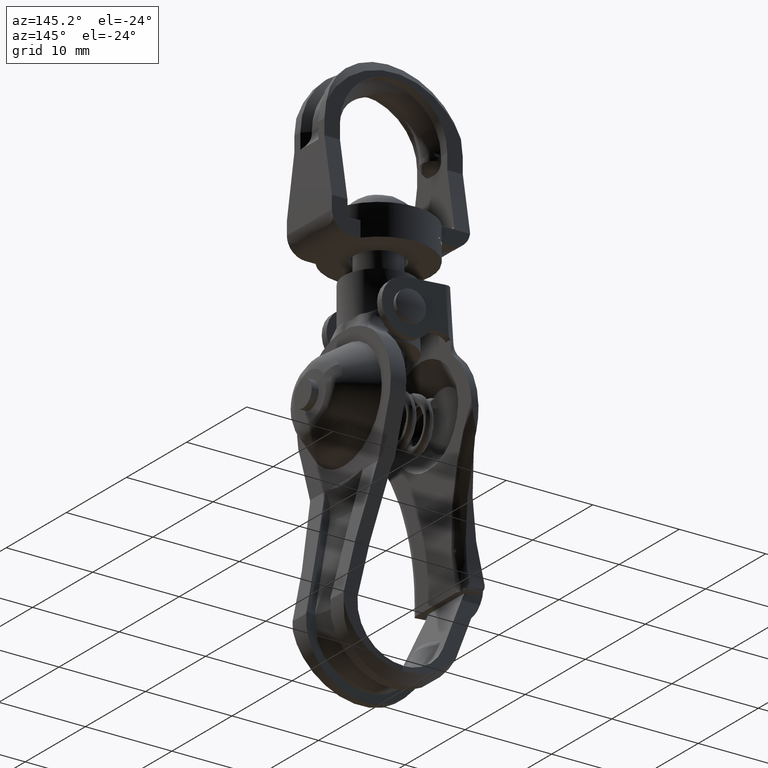
[diagram: clean part render]
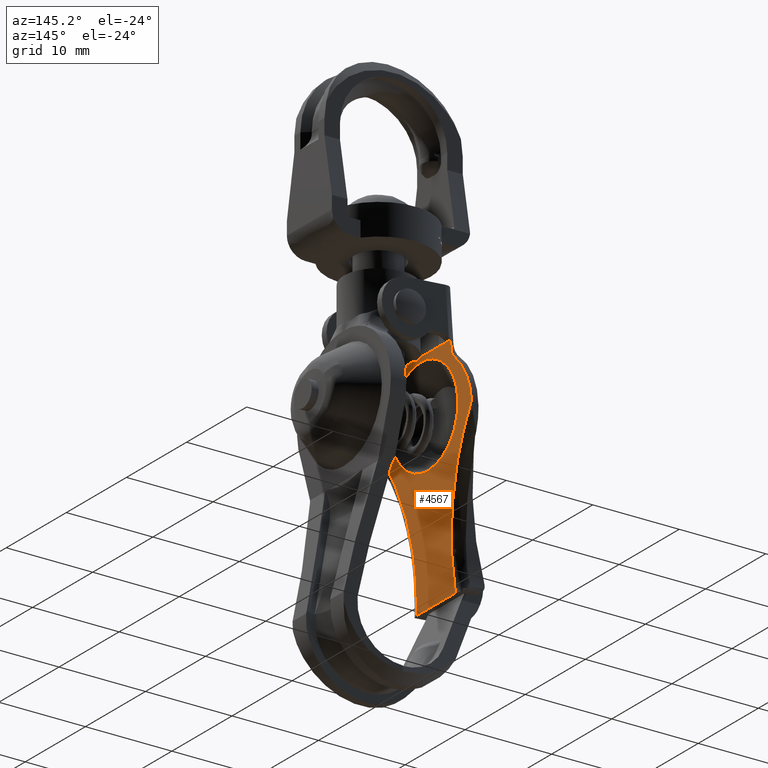
[diagram: same view with one face highlighted and labeled with its STEP entity id]
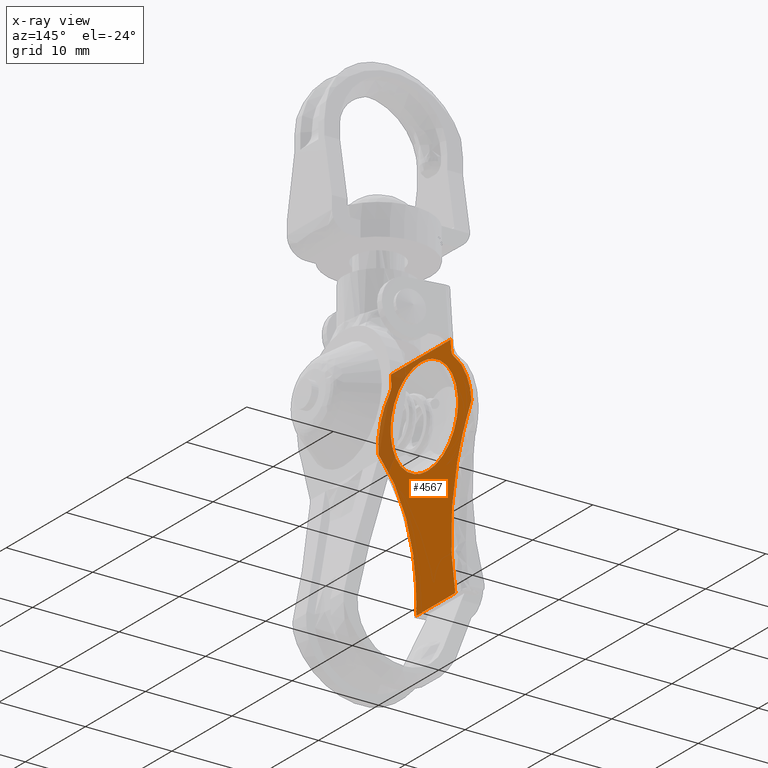
[diagram: x-ray of the same camera — body ghosted, the highlighted face saturated]
A machine part, auxiliary view. The second image highlights one B-rep face of the part: STEP entity #4567.
The next image is the same camera in x-ray: the body ghosted, the highlighted face saturated — about 12% of this face is hidden behind the body in this view.
In plain terms, the highlighted face is a freeform B-spline surface patch.
Its self-contained STEP definition (entity closure, byte-faithful):
#2290=CARTESIAN_POINT('',(-4.699999926960892,-4.249262095755214,-12.135136823011869));
#2291=VERTEX_POINT('',#2290);
#2297=CARTESIAN_POINT('',(-4.700000000000000,0.0,-14.106616932455630));
#2298=VERTEX_POINT('',#2297);
#2299=CARTESIAN_POINT('',(-4.699999926960892,-4.249262095755214,-12.135136823011869));
#2300=CARTESIAN_POINT('',(-4.699999932828142,-3.907917721639922,-12.539073908333300));
#2301=CARTESIAN_POINT('',(-4.699999945581369,-3.165961998880617,-13.197671364817930));
#2302=CARTESIAN_POINT('',(-4.699999966275907,-1.961996796675910,-13.796469957084110));
#2303=CARTESIAN_POINT('',(-4.699999984417538,-0.906555461902163,-14.059539828701681));
#2304=CARTESIAN_POINT('',(-4.699999995238688,-0.277001250868232,-14.106625598285641));
#2305=CARTESIAN_POINT('',(-4.700000000000000,0.0,-14.106616932455630));
#2306=B_SPLINE_CURVE_WITH_KNOTS('',3,(#2299,#2300,#2301,#2302,#2303,#2304,#2305),.UNSPECIFIED.,.F.,.U.,(4,1,1,1,4),(0.000000021888161,1.586491254625626,2.946327026799142,4.003992130923086,4.835003331236396),.UNSPECIFIED.);
#2307=EDGE_CURVE('',#2291,#2298,#2306,.T.);
#2309=CARTESIAN_POINT('',(-4.700000000000001,5.565097932455599,-8.541518407261645));
#2310=VERTEX_POINT('',#2309);
#2311=CARTESIAN_POINT('',(-4.700000000000000,0.0,-14.106616932455630));
#2312=CARTESIAN_POINT('',(-4.699999999999998,0.364237017933476,-14.106663654072840));
#2313=CARTESIAN_POINT('',(-4.700000000000011,1.001629532195385,-14.043808721457870));
#2314=CARTESIAN_POINT('',(-4.699999999999985,1.859607361198557,-13.806353054068200));
#2315=CARTESIAN_POINT('',(-4.700000000000014,2.717191350092024,-13.432571839887929));
#2316=CARTESIAN_POINT('',(-4.699999999999982,3.555105650584280,-12.872686926663089));
#2317=CARTESIAN_POINT('',(-4.700000000000030,4.310178955611933,-12.108235166196060));
#2318=CARTESIAN_POINT('',(-4.699999999999955,4.827206638337164,-11.354597656808661));
#2319=CARTESIAN_POINT('',(-4.700000000000049,5.222493939456833,-10.531965916782200));
#2320=CARTESIAN_POINT('',(-4.699999999999969,5.495576287551199,-9.611443385658843));
#2321=CARTESIAN_POINT('',(-4.700000000000013,5.565138719901327,-8.905753304884557));
#2322=CARTESIAN_POINT('',(-4.700000000000001,5.565097932455599,-8.541518407261645));
#2323=B_SPLINE_CURVE_WITH_KNOTS('',3,(#2311,#2312,#2313,#2314,#2315,#2316,#2317,#2318,#2319,#2320,#2321,#2322),.UNSPECIFIED.,.F.,.U.,(4,1,1,1,1,1,1,1,1,4),(0.000000082825347,1.092708795406505,1.912243581505662,2.663487401324893,3.892810237536286,4.917190947545786,5.873311815976607,6.624563133884786,7.648986932867148,8.741690574689143),.UNSPECIFIED.);
#2324=EDGE_CURVE('',#2298,#2310,#2323,.T.);
#2326=CARTESIAN_POINT('',(-4.700000000000000,0.0,-2.976421067544369));
#2327=VERTEX_POINT('',#2326);
#2328=CARTESIAN_POINT('',(-4.700000000000001,5.565097932455599,-8.541518407261645));
#2329=CARTESIAN_POINT('',(-4.700000000000012,5.565334843694945,-7.995146747099992));
#2330=CARTESIAN_POINT('',(-4.699999999999999,5.419750900557608,-7.016390329373357));
#2331=CARTESIAN_POINT('',(-4.699999999999994,4.842725404846407,-5.692735691198021));
#2332=CARTESIAN_POINT('',(-4.700000000000019,4.120515757622046,-4.743553026689695));
#2333=CARTESIAN_POINT('',(-4.700000000000023,3.346402298000902,-4.067619814227113));
#2334=CARTESIAN_POINT('',(-4.699999999999963,2.632872392696687,-3.615770734099845));
#2335=CARTESIAN_POINT('',(-4.700000000000067,1.839875416991214,-3.264243489355506));
#2336=CARTESIAN_POINT('',(-4.699999999999905,0.956104620114393,-3.031315077483682));
#2337=CARTESIAN_POINT('',(-4.700000000000059,0.318699863581495,-2.976398120024939));
#2338=CARTESIAN_POINT('',(-4.700000000000000,0.0,-2.976421067544369));
#2339=B_SPLINE_CURVE_WITH_KNOTS('',3,(#2328,#2329,#2330,#2331,#2332,#2333,#2334,#2335,#2336,#2337,#2338),.UNSPECIFIED.,.F.,.U.,(4,1,1,1,1,1,1,1,4),(0.000000083032413,1.639064999653646,2.936666057903187,4.302574649919320,5.190368780572831,6.009909293290786,6.829445949078416,7.785587440111962,8.741689906530686),.UNSPECIFIED.);
#2340=EDGE_CURVE('',#2310,#2327,#2339,.T.);
#2342=CARTESIAN_POINT('',(-4.700000073965660,-3.830760474520223,-4.504739747238347));
#2343=VERTEX_POINT('',#2342);
#2344=CARTESIAN_POINT('',(-4.700000000000000,0.0,-2.976421067544369));
#2345=CARTESIAN_POINT('',(-4.700000008073233,-0.418121801394013,-2.976329954705891));
#2346=CARTESIAN_POINT('',(-4.700000020394470,-1.056250708418042,-3.048704519853371));
#2347=CARTESIAN_POINT('',(-4.700000038777572,-2.008332295908005,-3.327325911825371));
#2348=CARTESIAN_POINT('',(-4.700000056163598,-2.908772705664858,-3.750044072474836));
#2349=CARTESIAN_POINT('',(-4.700000068110693,-3.527525216653646,-4.216863183565867));
#2350=CARTESIAN_POINT('',(-4.700000073965660,-3.830760474520223,-4.504739747238347));
#2351=B_SPLINE_CURVE_WITH_KNOTS('',3,(#2344,#2345,#2346,#2347,#2348,#2349,#2350),.UNSPECIFIED.,.F.,.U.,(4,1,1,1,4),(0.000000022112062,1.254343919885995,1.914528289929805,2.970804563797084,4.225148461557780),.UNSPECIFIED.);
#2352=EDGE_CURVE('',#2327,#2343,#2351,.T.);
#2437=CARTESIAN_POINT('',(-4.700000000000000,-5.565097932455599,-8.541519592738348));
#2438=VERTEX_POINT('',#2437);
#2439=CARTESIAN_POINT('',(-4.700000073965660,-3.830760474520223,-4.504739747238347));
#2440=CARTESIAN_POINT('',(-4.700000068626306,-4.137976278458866,-4.796142557842767));
#2441=CARTESIAN_POINT('',(-4.700000059646423,-4.548426041176421,-5.286232454416825));
#2442=CARTESIAN_POINT('',(-4.700000044340743,-5.033662391601021,-6.121561418178351));
#2443=CARTESIAN_POINT('',(-4.700000025859143,-5.437145143268937,-7.130219578483434));
#2444=CARTESIAN_POINT('',(-4.700000009913986,-5.565319244960505,-8.000451452284322));
#2445=CARTESIAN_POINT('',(-4.700000000000000,-5.565097932455599,-8.541519592738348));
#2446=B_SPLINE_CURVE_WITH_KNOTS('',3,(#2439,#2440,#2441,#2442,#2443,#2444,#2445),.UNSPECIFIED.,.F.,.U.,(4,1,1,1,4),(0.000000022636327,1.270278172085975,1.905420160598949,2.893408575297031,4.516542381720345),.UNSPECIFIED.);
#2447=EDGE_CURVE('',#2343,#2438,#2446,.T.);
#2449=CARTESIAN_POINT('',(-4.700000000000000,-5.565097932455599,-8.541519592738348));
#2450=CARTESIAN_POINT('',(-4.699999988006115,-5.565421675627639,-9.131634560687733));
#2451=CARTESIAN_POINT('',(-4.699999968573635,-5.411518829354144,-10.087735930822470));
#2452=CARTESIAN_POINT('',(-4.699999944254801,-4.881629307623168,-11.284255124349430));
#2453=CARTESIAN_POINT('',(-4.699999932328584,-4.472648301665108,-11.871038163543361));
#2454=CARTESIAN_POINT('',(-4.699999926960892,-4.249262095755214,-12.135136823011869));
#2455=B_SPLINE_CURVE_WITH_KNOTS('',3,(#2449,#2450,#2451,#2452,#2453,#2454),.UNSPECIFIED.,.F.,.U.,(4,1,1,4),(0.000000017219740,1.770221996515776,2.868973568571441,3.906688342577989),.UNSPECIFIED.);
#2456=EDGE_CURVE('',#2438,#2291,#2455,.T.);
#2859=CARTESIAN_POINT('',(-4.700000000000000,3.239909726624515,-27.772362000000101));
#2860=VERTEX_POINT('',#2859);
#2904=CARTESIAN_POINT('',(-4.700000000000000,7.731396394530660,-9.672229549134801));
#2905=VERTEX_POINT('',#2904);
#2925=CARTESIAN_POINT('',(-4.700000000000000,3.239909726624515,-27.772362000000101));
#2926=CARTESIAN_POINT('',(-4.700000000000006,2.992116297160789,-25.997982517896009));
#2927=CARTESIAN_POINT('',(-4.700000000000002,2.906770916938120,-23.246430522276299));
#2928=CARTESIAN_POINT('',(-4.700000000000006,3.428497975899189,-19.343317236856191));
#2929=CARTESIAN_POINT('',(-4.699999999999988,4.201351078059480,-16.451213624380639));
#2930=CARTESIAN_POINT('',(-4.700000000000054,5.562194306668626,-13.077771840373190));
#2931=CARTESIAN_POINT('',(-4.699999999999974,6.799386542222525,-10.963540630753471));
#2932=CARTESIAN_POINT('',(-4.700000000000000,7.731396394530660,-9.672229549134801));
#2933=B_SPLINE_CURVE_WITH_KNOTS('',3,(#2925,#2926,#2927,#2928,#2929,#2930,#2931,#2932),.UNSPECIFIED.,.F.,.U.,(4,1,1,1,1,4),(9.934606E-009,5.374703603967888,8.211353374381391,11.794473868233100,14.332536963769220,19.110049281713732),.UNSPECIFIED.);
#2934=EDGE_CURVE('',#2860,#2905,#2933,.T.);
#2969=CARTESIAN_POINT('',(-4.700000000000000,-3.239909726624525,-27.772362000000101));
#2970=VERTEX_POINT('',#2969);
#2978=CARTESIAN_POINT('',(-4.700000000000000,-7.731399461377510,-9.672225298801189));
#2979=VERTEX_POINT('',#2978);
#2980=CARTESIAN_POINT('',(-4.700000000000000,-7.731399461377510,-9.672225298801189));
#2981=CARTESIAN_POINT('',(-4.699999999999995,-7.003346520313648,-10.681104441553080));
#2982=CARTESIAN_POINT('',(-4.700000000000006,-5.724347773935593,-12.765250157452931));
#2983=CARTESIAN_POINT('',(-4.699999999999995,-4.173625848945585,-16.388977630858570));
#2984=CARTESIAN_POINT('',(-4.699999999999988,-3.319308417566068,-19.832085005644391));
#2985=CARTESIAN_POINT('',(-4.700000000000062,-2.914431065849807,-23.747781045282601));
#2986=CARTESIAN_POINT('',(-4.699999999999978,-3.019755144263978,-26.195135542299930));
#2987=CARTESIAN_POINT('',(-4.700000000000000,-3.239909726624525,-27.772362000000101));
#2988=B_SPLINE_CURVE_WITH_KNOTS('',3,(#2980,#2981,#2982,#2983,#2984,#2985,#2986,#2987),.UNSPECIFIED.,.F.,.U.,(4,1,1,1,1,4),(9.937892E-009,3.732430505483553,7.315577429857642,11.794477103085530,14.332540894738250,19.110054523004582),.UNSPECIFIED.);
#2989=EDGE_CURVE('',#2979,#2970,#2988,.T.);
#3092=CARTESIAN_POINT('',(-4.700000000000000,-4.979795897113280,-3.506155721737450));
#3093=VERTEX_POINT('',#3092);
#3094=CARTESIAN_POINT('',(-4.700000000000000,-5.332761139936580,-4.286219198872191));
#3095=VERTEX_POINT('',#3094);
#3096=CARTESIAN_POINT('',(-4.700000000000000,-4.979795897113280,-3.506155721737450));
#3097=CARTESIAN_POINT('',(-4.699999999999998,-4.979248000476573,-3.662520138137680));
#3098=CARTESIAN_POINT('',(-4.700000000000008,-5.047100755756099,-3.956605787977030));
#3099=CARTESIAN_POINT('',(-4.699999999999997,-5.228865928719370,-4.195454473379677));
#3100=CARTESIAN_POINT('',(-4.700000000000000,-5.332761139936580,-4.286219198872191));
#3101=B_SPLINE_CURVE_WITH_KNOTS('',3,(#3096,#3097,#3098,#3099,#3100),.UNSPECIFIED.,.F.,.U.,(4,1,4),(0.000000052691409,0.468960591273866,0.882771037230586),.UNSPECIFIED.);
#3102=EDGE_CURVE('',#3093,#3095,#3101,.T.);
#3269=CARTESIAN_POINT('',(-4.700000000000000,4.979793897113219,-3.506156584903440));
#3270=VERTEX_POINT('',#3269);
#3296=CARTESIAN_POINT('',(-4.700000000000000,5.332759014936540,-4.286219961853270));
#3297=VERTEX_POINT('',#3296);
#3298=CARTESIAN_POINT('',(-4.700000000000000,5.332759014936540,-4.286219961853270));
#3299=CARTESIAN_POINT('',(-4.699999999999999,5.228950657482556,-4.195388679559120));
#3300=CARTESIAN_POINT('',(-4.700000000000001,5.047199940215996,-3.956550638753997));
#3301=CARTESIAN_POINT('',(-4.700000000000006,4.979396048234783,-3.662493815196271));
#3302=CARTESIAN_POINT('',(-4.700000000000000,4.979793897113219,-3.506156584903440));
#3303=B_SPLINE_CURVE_WITH_KNOTS('',3,(#3298,#3299,#3300,#3301,#3302),.UNSPECIFIED.,.F.,.U.,(4,1,4),(0.000000052375318,0.413771772269819,0.882689958082987),.UNSPECIFIED.);
#3304=EDGE_CURVE('',#3297,#3270,#3303,.T.);
#3338=CARTESIAN_POINT('',(-4.700000000000000,-4.979795897113280,-2.469963805232120));
#3339=VERTEX_POINT('',#3338);
#3340=CARTESIAN_POINT('',(-4.700000000000000,-4.979795897113280,-2.469963805232120));
#3341=CARTESIAN_POINT('',(-4.700000000000000,-4.979795897113280,-3.506155721737450));
#3342=QUASI_UNIFORM_CURVE('',1,(#3340,#3341),.UNSPECIFIED.,.F.,.U.);
#3343=EDGE_CURVE('',#3339,#3093,#3342,.T.);
#3389=CARTESIAN_POINT('',(-4.700000000000000,4.979793897113230,-2.469963805232120));
#3390=VERTEX_POINT('',#3389);
#3391=CARTESIAN_POINT('',(-4.700000000000000,4.979793897113219,-3.506156584903440));
#3392=CARTESIAN_POINT('',(-4.700000000000000,4.979793897113230,-2.469963805232120));
#3393=QUASI_UNIFORM_CURVE('',1,(#3391,#3392),.UNSPECIFIED.,.F.,.U.);
#3394=EDGE_CURVE('',#3270,#3390,#3393,.T.);
#3707=CARTESIAN_POINT('',(-4.700000000000000,-4.200000000000315,-2.469963805236120));
#3708=VERTEX_POINT('',#3707);
#3746=CARTESIAN_POINT('',(-4.700000000000000,4.199997999999815,-2.469963805236120));
#3747=VERTEX_POINT('',#3746);
#3829=CARTESIAN_POINT('',(-4.700000000000000,4.199997999999815,-2.469963805236120));
#3830=CARTESIAN_POINT('',(-4.700000000000000,-4.200000000000315,-2.469963805236120));
#3831=QUASI_UNIFORM_CURVE('',1,(#3829,#3830),.UNSPECIFIED.,.F.,.U.);
#3832=EDGE_CURVE('',#3747,#3708,#3831,.T.);
#4158=CARTESIAN_POINT('',(-4.700000000000000,-4.200000000000315,-2.469963805236120));
#4159=CARTESIAN_POINT('',(-4.700000000000000,-4.979795897113280,-2.469963805232120));
#4160=QUASI_UNIFORM_CURVE('',1,(#4158,#4159),.UNSPECIFIED.,.F.,.U.);
#4161=EDGE_CURVE('',#3708,#3339,#4160,.T.);
#4182=CARTESIAN_POINT('',(-4.700000000000000,4.979793897113230,-2.469963805232120));
#4183=CARTESIAN_POINT('',(-4.700000000000000,4.199997999999815,-2.469963805236120));
#4184=QUASI_UNIFORM_CURVE('',1,(#4182,#4183),.UNSPECIFIED.,.F.,.U.);
#4185=EDGE_CURVE('',#3390,#3747,#4184,.T.);
#4298=CARTESIAN_POINT('',(-4.700000000000000,-7.731399461377510,-9.672225298801189));
#4299=CARTESIAN_POINT('',(-4.699999999999999,-7.737889653908590,-9.260217633559023));
#4300=CARTESIAN_POINT('',(-4.700000000000010,-7.666437830830978,-8.276348149590790));
#4301=CARTESIAN_POINT('',(-4.699999999999980,-7.247200129480238,-6.835154358026952));
#4302=CARTESIAN_POINT('',(-4.700000000000035,-6.447448105408100,-5.419278940141067));
#4303=CARTESIAN_POINT('',(-4.699999999999976,-5.738980289646424,-4.640276397515229));
#4304=CARTESIAN_POINT('',(-4.700000000000000,-5.332761139936580,-4.286219198872191));
#4305=B_SPLINE_CURVE_WITH_KNOTS('',3,(#4298,#4299,#4300,#4301,#4302,#4303,#4304),.UNSPECIFIED.,.F.,.U.,(4,1,1,1,4),(0.000000012051494,1.236194137481041,2.947856890538198,4.469325125319093,6.085889829111908),.UNSPECIFIED.);
#4306=EDGE_CURVE('',#2979,#3095,#4305,.T.);
#4326=CARTESIAN_POINT('',(-4.700000000000000,5.332759014936540,-4.286219961853270));
#4327=CARTESIAN_POINT('',(-4.700000000000012,5.738970190445698,-4.640283758181726));
#4328=CARTESIAN_POINT('',(-4.699999999999978,6.404522824937704,-5.372063034258615));
#4329=CARTESIAN_POINT('',(-4.700000000000022,7.093870204130865,-6.555006534741118));
#4330=CARTESIAN_POINT('',(-4.699999999999984,7.607954741272897,-7.958565829820037));
#4331=CARTESIAN_POINT('',(-4.700000000000016,7.742125502480931,-9.006639957333555));
#4332=CARTESIAN_POINT('',(-4.700000000000000,7.731396394530660,-9.672229549134801));
#4333=B_SPLINE_CURVE_WITH_KNOTS('',3,(#4326,#4327,#4328,#4329,#4330,#4331,#4332),.UNSPECIFIED.,.F.,.U.,(4,1,1,1,4),(0.000000012052106,1.616565536625616,2.947858387261695,4.088953870604007,6.085892919109572),.UNSPECIFIED.);
#4334=EDGE_CURVE('',#3297,#2905,#4333,.T.);
#4505=CARTESIAN_POINT('',(-4.700000000000000,3.239909726624515,-27.772362000000101));
#4506=CARTESIAN_POINT('',(-4.700000000000000,-3.239909726624525,-27.772362000000101));
#4507=QUASI_UNIFORM_CURVE('',1,(#4505,#4506),.UNSPECIFIED.,.F.,.U.);
#4508=EDGE_CURVE('',#2860,#2970,#4507,.T.);
#4540=CARTESIAN_POINT('',(-4.700000000000000,8.504089380165961,-1.206109064444416));
#4541=CARTESIAN_POINT('',(-4.700000000000000,-8.504045027891138,-1.206109064444416));
#4542=CARTESIAN_POINT('',(-4.700000000000000,8.504089380165961,-29.036217419451020));
#4543=CARTESIAN_POINT('',(-4.700000000000000,-8.504045027891138,-29.036217419451020));
#4544=B_SPLINE_SURFACE_WITH_KNOTS('',1,1,((#4540,#4542),(#4541,#4543)),.UNSPECIFIED.,.F.,.F.,.U.,(2,2),(2,2),(0.0,17.008134408057099),(0.0,27.830108355006601),.UNSPECIFIED.);
#4545=ORIENTED_EDGE('',*,*,#4306,.F.);
#4546=ORIENTED_EDGE('',*,*,#2989,.T.);
#4547=ORIENTED_EDGE('',*,*,#4508,.F.);
#4548=ORIENTED_EDGE('',*,*,#2934,.T.);
#4549=ORIENTED_EDGE('',*,*,#4334,.F.);
#4550=ORIENTED_EDGE('',*,*,#3304,.T.);
#4551=ORIENTED_EDGE('',*,*,#3394,.T.);
#4552=ORIENTED_EDGE('',*,*,#4185,.T.);
#4553=ORIENTED_EDGE('',*,*,#3832,.T.);
#4554=ORIENTED_EDGE('',*,*,#4161,.T.);
#4555=ORIENTED_EDGE('',*,*,#3343,.T.);
#4556=ORIENTED_EDGE('',*,*,#3102,.T.);
#4557=EDGE_LOOP('',(#4545,#4546,#4547,#4548,#4549,#4550,#4551,#4552,#4553,#4554,#4555,#4556));
#4558=FACE_OUTER_BOUND('',#4557,.T.);
#4559=ORIENTED_EDGE('',*,*,#2324,.F.);
#4560=ORIENTED_EDGE('',*,*,#2307,.F.);
#4561=ORIENTED_EDGE('',*,*,#2456,.F.);
#4562=ORIENTED_EDGE('',*,*,#2447,.F.);
#4563=ORIENTED_EDGE('',*,*,#2352,.F.);
#4564=ORIENTED_EDGE('',*,*,#2340,.F.);
#4565=EDGE_LOOP('',(#4559,#4560,#4561,#4562,#4563,#4564));
#4566=FACE_BOUND('',#4565,.T.);
#4567=ADVANCED_FACE('',(#4558,#4566),#4544,.T.);